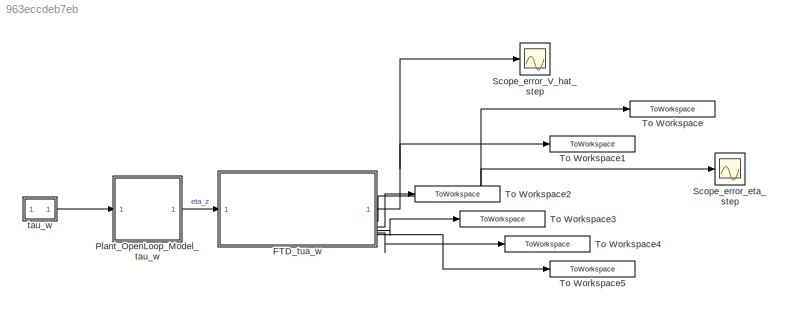
MODEL slx_963eccdeb7eb
KIND model
CONFIG AbsTol = auto
CONFIG EnableMultiTasking = off
CONFIG FixedStep = 0.002s
CONFIG MaxStep = auto
CONFIG MinStep = auto
CONFIG RelTol = 1e-3
CONFIG SampleTimeConstraint = Unconstrained
CONFIG SolverName = VariableStepAuto
CONFIG StartTime = 0.0
CONFIG StopTime = 150
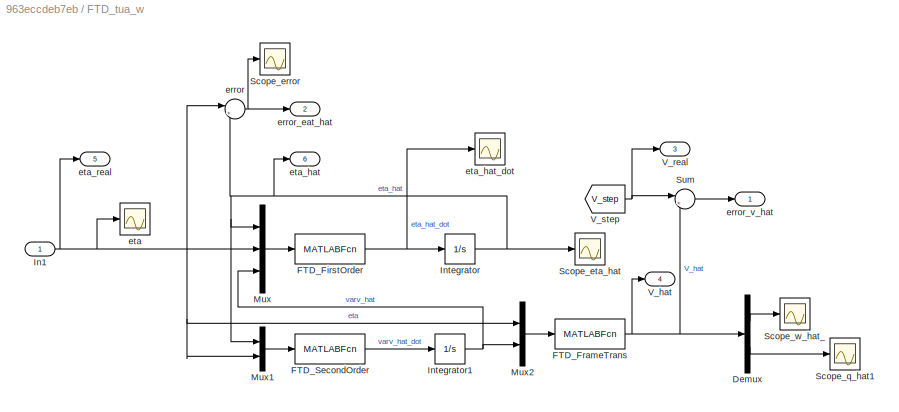
BLOCK [SubSystem] FTD_tua_w
BLOCK [Demux] FTD_tua_w/Demux
  Outputs = 2
BLOCK [MATLABFcn] FTD_tua_w/FTD_FirstOrder
  MATLABFcn = FTD_FirstOrder
  OutputDimensions = 2
  OutputSignalType = real
BLOCK [MATLABFcn] FTD_tua_w/FTD_FrameTrans
  MATLABFcn = FTD_FrameTrans
  OutputDimensions = 2
  OutputSignalType = real
BLOCK [MATLABFcn] FTD_tua_w/FTD_SecondOrder
  MATLABFcn = FTD_SecondOrder
  OutputDimensions = 2
  OutputSignalType = real
BLOCK [Inport] FTD_tua_w/In1
BLOCK [Integrator] FTD_tua_w/Integrator
BLOCK [Integrator] FTD_tua_w/Integrator1
BLOCK [Mux] FTD_tua_w/Mux
  DisplayOption = bar
  Inputs = 3
BLOCK [Mux] FTD_tua_w/Mux1
  DisplayOption = bar
  Inputs = 2
BLOCK [Mux] FTD_tua_w/Mux2
  DisplayOption = bar
  Inputs = 2
BLOCK [Scope] FTD_tua_w/Scope_error
  Floating = off
  NumInputPorts = 1
  ScopeSpecificationString = Simulink.scopes.TimeScopeBlockCfg('CurrentConfiguration', extmgr.ConfigurationSet(extmgr.Configuration('Core','General UI',true),extmgr.Configuration('Core','Source UI',true),extmgr.Configuration('Sources','WiredSimulink',true,'DataLoggingVariableName','ScopeData2'),extmgr.Configuration('Visuals','Time Domain',true,'SerializedDisplays',{struct('MinYLimReal','-0.00868','MaxYLimReal','0.01148','YLab...<+1426ch>
BLOCK [Scope] FTD_tua_w/Scope_eta_hat
  Floating = off
  NumInputPorts = 1
  ScopeSpecificationString = Simulink.scopes.TimeScopeBlockCfg('CurrentConfiguration', extmgr.ConfigurationSet(extmgr.Configuration('Core','General UI',true),extmgr.Configuration('Core','Source UI',true),extmgr.Configuration('Sources','WiredSimulink',true,'DataLoggingVariableName','ScopeData3'),extmgr.Configuration('Visuals','Time Domain',true,'SerializedDisplays',{struct('MinYLimReal','-3.15863','MaxYLimReal','9.11216','YLab...<+1466ch>
BLOCK [Scope] FTD_tua_w/Scope_q_hat1
  Floating = off
  NumInputPorts = 1
  ScopeSpecificationString = Simulink.scopes.TimeScopeBlockCfg('CurrentConfiguration', extmgr.ConfigurationSet(extmgr.Configuration('Core','General UI',true),extmgr.Configuration('Core','Source UI',true),extmgr.Configuration('Sources','WiredSimulink',true,'DataLoggingVariableName','ScopeData4'),extmgr.Configuration('Visuals','Time Domain',true,'SerializedDisplays',{struct('MinYLimReal','-0.12714','MaxYLimReal','1.1443','YLabe...<+1395ch>
BLOCK [Scope] FTD_tua_w/Scope_w_hat_
  Floating = off
  NumInputPorts = 1
  ScopeSpecificationString = Simulink.scopes.TimeScopeBlockCfg('CurrentConfiguration', extmgr.ConfigurationSet(extmgr.Configuration('Core','General UI',true),extmgr.Configuration('Core','Source UI',true),extmgr.Configuration('Sources','WiredSimulink',true,'DataLoggingVariableName','ScopeData5'),extmgr.Configuration('Visuals','Time Domain',true,'SerializedDisplays',{struct('MinYLimReal','-0.21929','MaxYLimReal','0.06352','YLab...<+1398ch>
BLOCK [Sum] FTD_tua_w/Sum
  Inputs = |+-
BLOCK [Outport] FTD_tua_w/V_hat
  Port = 4
BLOCK [Outport] FTD_tua_w/V_real
  Port = 3
BLOCK [From] FTD_tua_w/V_step
  GotoTag = V_step
  TagVisibility = global
BLOCK [Sum] FTD_tua_w/error
  Inputs = |+-
BLOCK [Outport] FTD_tua_w/error_eat_hat
  Port = 2
BLOCK [Outport] FTD_tua_w/error_v_hat
BLOCK [Scope] FTD_tua_w/eta
  Floating = off
  NumInputPorts = 1
  ScopeSpecificationString = Simulink.scopes.TimeScopeBlockCfg('CurrentConfiguration', extmgr.ConfigurationSet(extmgr.Configuration('Core','General UI',true),extmgr.Configuration('Core','Source UI',true),extmgr.Configuration('Sources','WiredSimulink',true,'DataLoggingVariableName','ScopeData6'),extmgr.Configuration('Visuals','Time Domain',true,'SerializedDisplays',{struct('MinYLimReal','-0.125','MaxYLimReal','1.125','YLabelRe...<+1570ch>
BLOCK [Outport] FTD_tua_w/eta_hat
  Port = 6
BLOCK [Scope] FTD_tua_w/eta_hat_dot
  Floating = off
  NumInputPorts = 1
  ScopeSpecificationString = Simulink.scopes.TimeScopeBlockCfg('CurrentConfiguration', extmgr.ConfigurationSet(extmgr.Configuration('Core','General UI',true),extmgr.Configuration('Core','Source UI',true),extmgr.Configuration('Sources','WiredSimulink',true),extmgr.Configuration('Visuals','Time Domain',true,'SerializedDisplays',{struct('MinYLimReal','-0.00137','MaxYLimReal','0.00025','YLabelReal','','MinYLimMag','0.00000','MaxY...<+1552ch>
BLOCK [Outport] FTD_tua_w/eta_real
  Port = 5
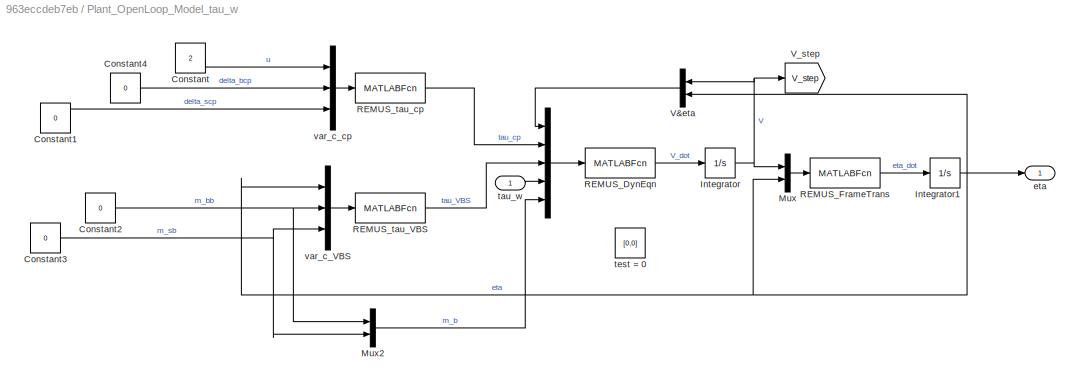
BLOCK [SubSystem] Plant_OpenLoop_Model_tau_w
BLOCK [Mux] Plant_OpenLoop_Model_tau_w/ 
  DisplayOption = bar
  Inputs = 5
BLOCK [Constant] Plant_OpenLoop_Model_tau_w/Constant
  OutDataTypeStr = Inherit: Inherit via back propagation
  Value = 2
BLOCK [Constant] Plant_OpenLoop_Model_tau_w/Constant1
  Value = 0
BLOCK [Constant] Plant_OpenLoop_Model_tau_w/Constant2
  Value = 0
BLOCK [Constant] Plant_OpenLoop_Model_tau_w/Constant3
  Value = 0
BLOCK [Constant] Plant_OpenLoop_Model_tau_w/Constant4
  Value = 0
BLOCK [Integrator] Plant_OpenLoop_Model_tau_w/Integrator
BLOCK [Integrator] Plant_OpenLoop_Model_tau_w/Integrator1
BLOCK [Mux] Plant_OpenLoop_Model_tau_w/Mux
  DisplayOption = bar
  Inputs = 2
BLOCK [Mux] Plant_OpenLoop_Model_tau_w/Mux2
  DisplayOption = bar
  Inputs = 2
BLOCK [MATLABFcn] Plant_OpenLoop_Model_tau_w/REMUS_DynEqn
  MATLABFcn = REMUS_DynEqn
  OutputDimensions = 2
  OutputSignalType = real
BLOCK [MATLABFcn] Plant_OpenLoop_Model_tau_w/REMUS_FrameTrans
  MATLABFcn = REMUS_FrameTrans
  OutputDimensions = 2
  OutputSignalType = real
BLOCK [MATLABFcn] Plant_OpenLoop_Model_tau_w/REMUS_tau_VBS
  MATLABFcn = REMUS_tau_VBS
  OutputDimensions = 2
  OutputSignalType = real
BLOCK [MATLABFcn] Plant_OpenLoop_Model_tau_w/REMUS_tau_cp
  MATLABFcn = REMUS_tau_cp
  OutputDimensions = 2
  OutputSignalType = real
BLOCK [Mux] Plant_OpenLoop_Model_tau_w/V&eta
  DisplayOption = bar
  Inputs = 2
  NameLocation = top
BLOCK [Goto] Plant_OpenLoop_Model_tau_w/V_step
  GotoTag = V_step
  TagVisibility = global
BLOCK [Outport] Plant_OpenLoop_Model_tau_w/eta
BLOCK [Inport] Plant_OpenLoop_Model_tau_w/tau_w
BLOCK [Constant] Plant_OpenLoop_Model_tau_w/test = 0
  Value = [0,0]
BLOCK [Mux] Plant_OpenLoop_Model_tau_w/var_c_VBS
  DisplayOption = bar
  Inputs = 3
BLOCK [Mux] Plant_OpenLoop_Model_tau_w/var_c_cp
  DisplayOption = bar
  Inputs = 3
BLOCK [Scope] Scope_error_V_hat_step
  Floating = off
  NumInputPorts = 1
  ScopeSpecificationString = Simulink.scopes.TimeScopeBlockCfg('CurrentConfiguration', extmgr.ConfigurationSet(extmgr.Configuration('Core','General UI',true),extmgr.Configuration('Core','Source UI',true),extmgr.Configuration('Sources','WiredSimulink',true,'DataLoggingVariableName','ScopeData1'),extmgr.Configuration('Visuals','Time Domain',true,'SerializedDisplays',{struct('MinYLimReal','-0.00375','MaxYLimReal','0.00577','YLab...<+1461ch>
BLOCK [Scope] Scope_error_eta_step
  Floating = off
  NumInputPorts = 1
  ScopeSpecificationString = Simulink.scopes.TimeScopeBlockCfg('CurrentConfiguration', extmgr.ConfigurationSet(extmgr.Configuration('Core','General UI',true),extmgr.Configuration('Core','Source UI',true),extmgr.Configuration('Sources','WiredSimulink',true,'DataLoggingVariableName','ScopeData2'),extmgr.Configuration('Visuals','Time Domain',true,'SerializedDisplays',{struct('MinYLimReal','-0.00000017','MaxYLimReal','0.00000029'...<+1466ch>
BLOCK [ToWorkspace] To Workspace
  FixptAsFi = on
  MaxDataPoints = inf
  SampleTime = -1
  SaveFormat = Timeseries
  VariableName = error_eta_tau_w
BLOCK [ToWorkspace] To Workspace1
  FixptAsFi = on
  MaxDataPoints = inf
  SampleTime = -1
  SaveFormat = Timeseries
  VariableName = error_V_hat_tau_w
BLOCK [ToWorkspace] To Workspace2
  FixptAsFi = on
  MaxDataPoints = inf
  SampleTime = -1
  SaveFormat = Timeseries
  VariableName = V_real
BLOCK [ToWorkspace] To Workspace3
  FixptAsFi = on
  MaxDataPoints = inf
  SampleTime = -1
  SaveFormat = Timeseries
  VariableName = V_hat
BLOCK [ToWorkspace] To Workspace4
  FixptAsFi = on
  MaxDataPoints = inf
  SampleTime = -1
  SaveFormat = Timeseries
  VariableName = eta_real
BLOCK [ToWorkspace] To Workspace5
  FixptAsFi = on
  MaxDataPoints = inf
  SampleTime = -1
  SaveFormat = Timeseries
  VariableName = eta_hat
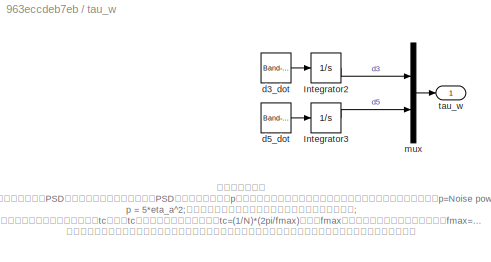
BLOCK [SubSystem] tau_w
BLOCK [Integrator] tau_w/Integrator2
BLOCK [Integrator] tau_w/Integrator3
BLOCK [Reference] tau_w/d3_dot  REF=simulink/Sources/Band-Limited
White Noise
  SourceBlock = simulink/Sources/Band-Limited\nWhite Noise
  SourceType = Band-Limited White Noise.
BLOCK [Reference] tau_w/d5_dot  REF=simulink/Sources/Band-Limited
White Noise
  SourceBlock = simulink/Sources/Band-Limited\nWhite Noise
  SourceType = Band-Limited White Noise.
BLOCK [Mux] tau_w/mux
  DisplayOption = bar
  Inputs = 2
BLOCK [Outport] tau_w/tau_w
  SignalType = real
ANNOTATION tau_w: 高斯白噪声模块 噪声功率：指定白噪声PSD（能量谱密度）的高度，这个PSD并不是噪声的能量p（并且这个能量的分布是常值），它与能量之间有一个转换关系，p=Noise power/tc，tc就在下面；默认值为0.1。S(w) = 0.5*eta_a^2; p = 5*eta_a^2;也就是说此处的噪声能量相当于信号幅值平方的平均值; 采样时间：指定噪声的相关时间tc，这个tc与系统的带宽之间的关系是tc=(1/N)*(2pi/fmax)，其中fmax是系统的带宽（实际上是角频率，fmax=2*pi*f，这个f才是我们常使用的频率Hz），N可以看成是采样率与系统频率的倍数关系（文档中推荐使用100），即采样率=N*系统频率，这和采样定理一致；默认值是0.1。 种子：这个参数是用来指定随机数生成器的初始值的，即种子，指定随机数生成器的起始种子。相当于不同相位。
LINE FTD_tua_w/Demux:1 -> FTD_tua_w/Scope_w_hat_:1
LINE FTD_tua_w/Demux:2 -> FTD_tua_w/Scope_q_hat1:1
NET FTD_tua_w/FTD_FirstOrder:1 -> FTD_tua_w/Integrator:1, FTD_tua_w/eta_hat_dot:1
NET FTD_tua_w/FTD_FrameTrans:1 -> FTD_tua_w/Demux:1, FTD_tua_w/Sum:2, FTD_tua_w/V_hat:1
LINE FTD_tua_w/FTD_SecondOrder:1 -> FTD_tua_w/Integrator1:1
NET FTD_tua_w/In1:1 -> FTD_tua_w/Mux1:2, FTD_tua_w/Mux2:1, FTD_tua_w/Mux:2, FTD_tua_w/error:1, FTD_tua_w/eta:1, FTD_tua_w/eta_real:1
NET FTD_tua_w/Integrator1:1 -> FTD_tua_w/Mux2:2, FTD_tua_w/Mux:3
NET FTD_tua_w/Integrator:1 -> FTD_tua_w/Mux1:1, FTD_tua_w/Mux:1, FTD_tua_w/Scope_eta_hat:1, FTD_tua_w/error:2, FTD_tua_w/eta_hat:1
LINE FTD_tua_w/Mux1:1 -> FTD_tua_w/FTD_SecondOrder:1
LINE FTD_tua_w/Mux2:1 -> FTD_tua_w/FTD_FrameTrans:1
LINE FTD_tua_w/Mux:1 -> FTD_tua_w/FTD_FirstOrder:1
LINE FTD_tua_w/Sum:1 -> FTD_tua_w/error_v_hat:1
NET FTD_tua_w/V_step:1 -> FTD_tua_w/Sum:1, FTD_tua_w/V_real:1
NET FTD_tua_w/error:1 -> FTD_tua_w/Scope_error:1, FTD_tua_w/error_eat_hat:1
NET FTD_tua_w:1 -> Scope_error_V_hat_step:1, To Workspace1:1
NET FTD_tua_w:2 -> Scope_error_eta_step:1, To Workspace:1
LINE FTD_tua_w:3 -> To Workspace2:1
LINE FTD_tua_w:4 -> To Workspace3:1
LINE FTD_tua_w:5 -> To Workspace4:1
LINE FTD_tua_w:6 -> To Workspace5:1
LINE Plant_OpenLoop_Model_tau_w/ :1 -> Plant_OpenLoop_Model_tau_w/REMUS_DynEqn:1
LINE Plant_OpenLoop_Model_tau_w/Constant1:1 -> Plant_OpenLoop_Model_tau_w/var_c_cp:3
NET Plant_OpenLoop_Model_tau_w/Constant2:1 -> Plant_OpenLoop_Model_tau_w/Mux2:1, Plant_OpenLoop_Model_tau_w/var_c_VBS:2
NET Plant_OpenLoop_Model_tau_w/Constant3:1 -> Plant_OpenLoop_Model_tau_w/Mux2:2, Plant_OpenLoop_Model_tau_w/var_c_VBS:3
LINE Plant_OpenLoop_Model_tau_w/Constant4:1 -> Plant_OpenLoop_Model_tau_w/var_c_cp:2
LINE Plant_OpenLoop_Model_tau_w/Constant:1 -> Plant_OpenLoop_Model_tau_w/var_c_cp:1
NET Plant_OpenLoop_Model_tau_w/Integrator1:1 -> Plant_OpenLoop_Model_tau_w/Mux:2, Plant_OpenLoop_Model_tau_w/V&eta:2, Plant_OpenLoop_Model_tau_w/eta:1, Plant_OpenLoop_Model_tau_w/var_c_VBS:1
NET Plant_OpenLoop_Model_tau_w/Integrator:1 -> Plant_OpenLoop_Model_tau_w/Mux:1, Plant_OpenLoop_Model_tau_w/V&eta:1, Plant_OpenLoop_Model_tau_w/V_step:1
LINE Plant_OpenLoop_Model_tau_w/Mux2:1 -> Plant_OpenLoop_Model_tau_w/ :5
LINE Plant_OpenLoop_Model_tau_w/Mux:1 -> Plant_OpenLoop_Model_tau_w/REMUS_FrameTrans:1
LINE Plant_OpenLoop_Model_tau_w/REMUS_DynEqn:1 -> Plant_OpenLoop_Model_tau_w/Integrator:1
LINE Plant_OpenLoop_Model_tau_w/REMUS_FrameTrans:1 -> Plant_OpenLoop_Model_tau_w/Integrator1:1
LINE Plant_OpenLoop_Model_tau_w/REMUS_tau_VBS:1 -> Plant_OpenLoop_Model_tau_w/ :3
LINE Plant_OpenLoop_Model_tau_w/REMUS_tau_cp:1 -> Plant_OpenLoop_Model_tau_w/ :2
LINE Plant_OpenLoop_Model_tau_w/V&eta:1 -> Plant_OpenLoop_Model_tau_w/ :1
LINE Plant_OpenLoop_Model_tau_w/tau_w:1 -> Plant_OpenLoop_Model_tau_w/ :4
LINE Plant_OpenLoop_Model_tau_w/var_c_VBS:1 -> Plant_OpenLoop_Model_tau_w/REMUS_tau_VBS:1
LINE Plant_OpenLoop_Model_tau_w/var_c_cp:1 -> Plant_OpenLoop_Model_tau_w/REMUS_tau_cp:1
LINE Plant_OpenLoop_Model_tau_w:1 -> FTD_tua_w:1
LINE tau_w/Integrator2:1 -> tau_w/mux:1
LINE tau_w/Integrator3:1 -> tau_w/mux:2
LINE tau_w/d3_dot:1 -> tau_w/Integrator2:1
LINE tau_w/d5_dot:1 -> tau_w/Integrator3:1
LINE tau_w/mux:1 -> tau_w/tau_w:1
LINE tau_w:1 -> Plant_OpenLoop_Model_tau_w:1
note: NET lines group one-source signal fan-out (src -> all destinations, sorted); 1:1 wires keep LINE
